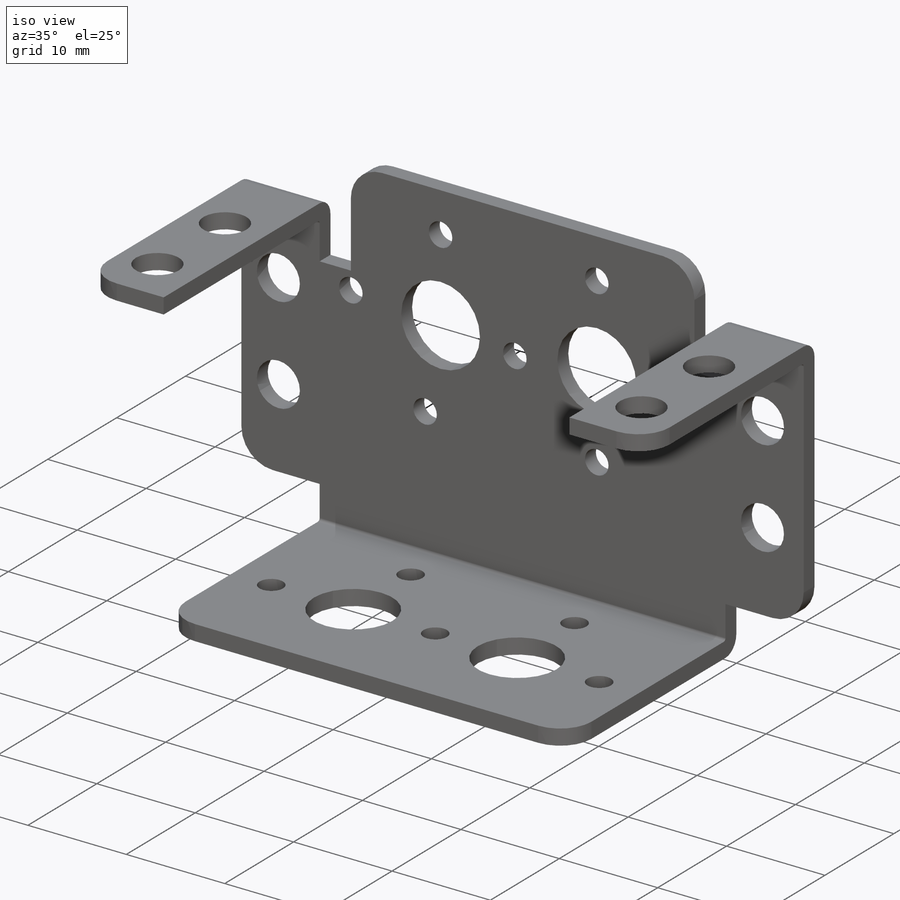
[diagram: iso view]
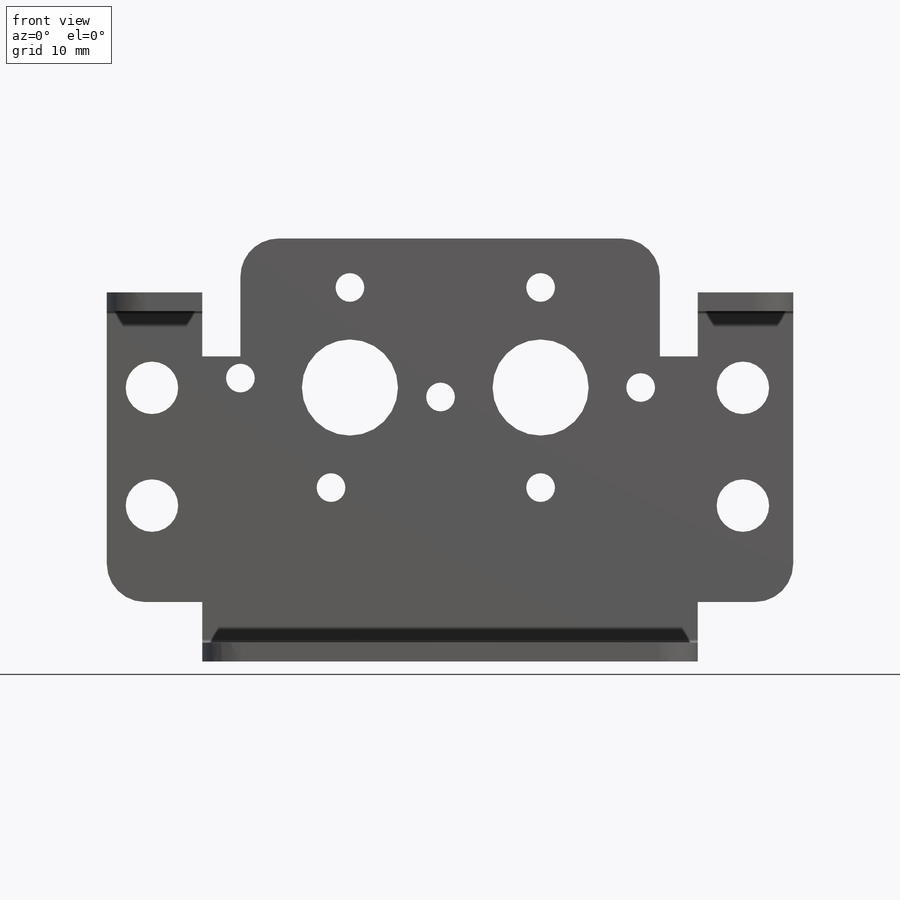
[diagram: front view]
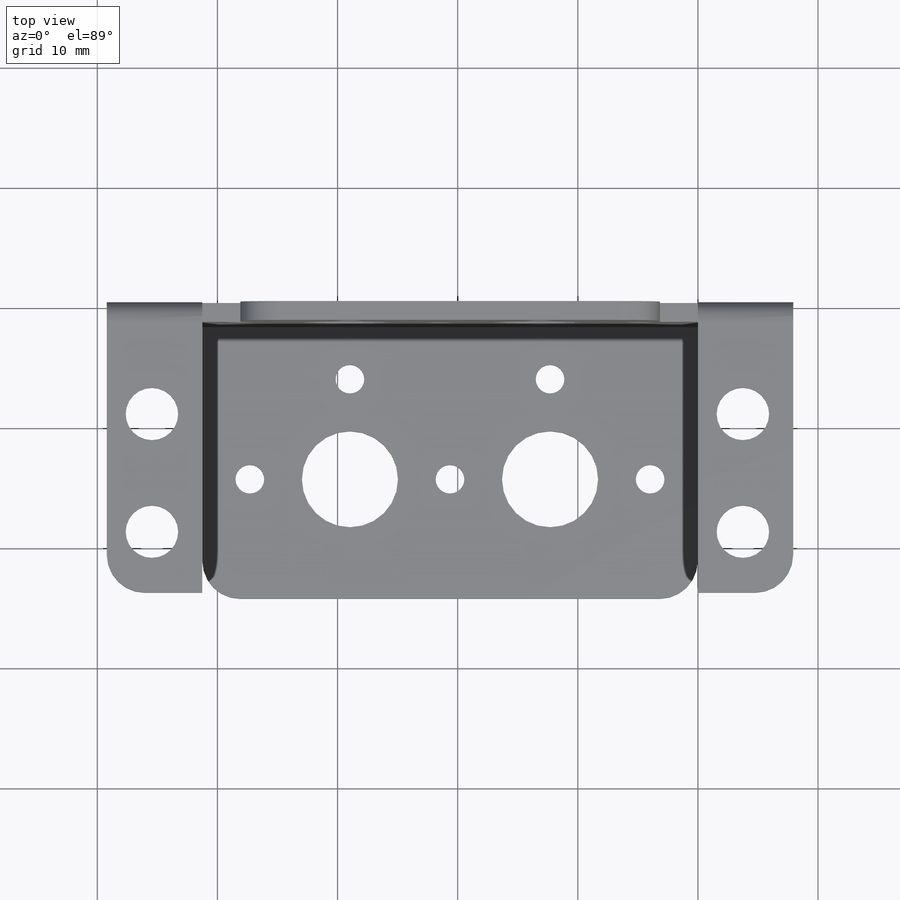
[diagram: top view]
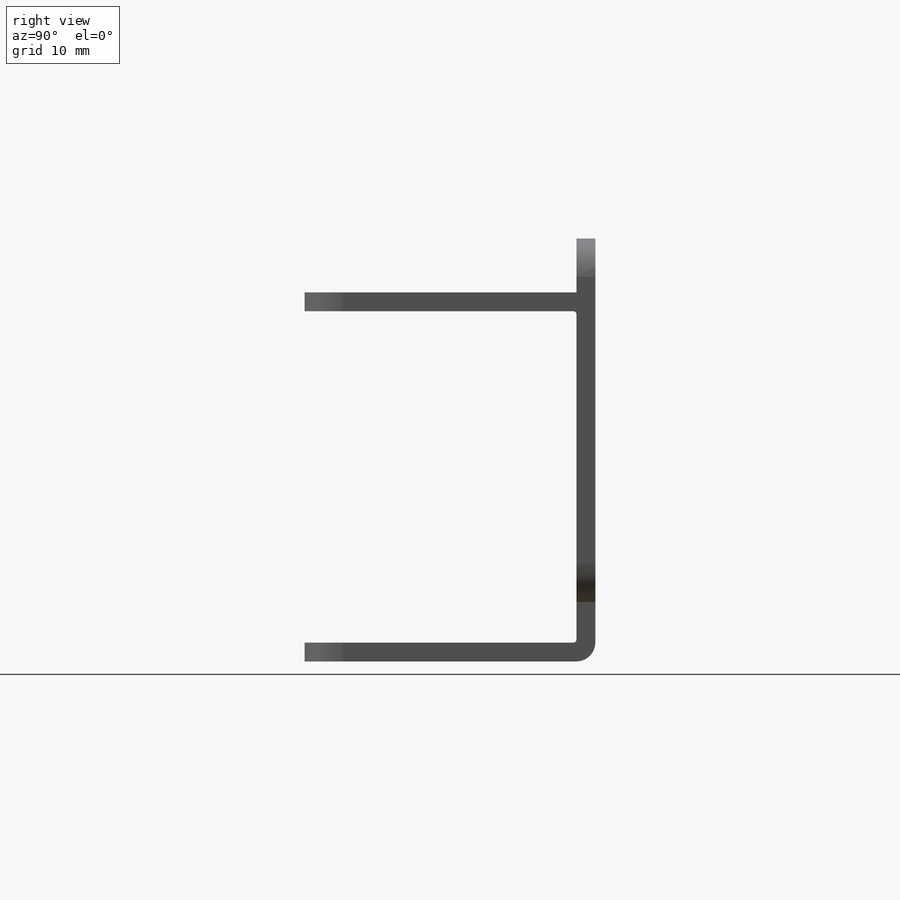
[diagram: right view]
SOLIDWORKS PART (.sldprt)
format: sldprt  version: not decoded by parser v0  size: 382,976 bytes
history: native  units: mm
features: sketch x4, fillet x3, extrude x2, cut_extrude x2, material x1 (+16 scaffold rows collapsed)
feature tree (28):
  scaffold x16  (default folders/planes/origin — collapsed)
  material  "Material <not specified>"
  sketch  "Sketch1"  dims[c1.D5=3.175mm c1.D1=3.175mm c1.D10=8.001mm c1.D11=16.6624mm c1.D12=2.3876mm c1.D15=4.3688mm c1.D16=4.3688mm c1.D18=4.3688mm c1.D20=4.3688mm c2.D1=30.734mm c2.D2=24.2062mm c3.D1=30.734mm c3.D2=57.15mm c3.D3=11.1252mm c3.D4=46.0502mm c3.D6=4.953mm c3.D7=4.953mm c3.D8=7.9502mm c3.D9=49.1998mm c4.D2=22.8092mm c4.D13=20.2438mm c4.D14=22.7838mm c4.D17=12.9794mm c4.D19=22.7838mm c4.D21=7.9502mm c4.D22=25.4mm c4.D23=25.4mm c4.D24=49.1998mm c4.D25=3.7592mm c4.D26=3.7592mm c4.D27=52.959mm c4.D28=12.9794mm c4.D29=52.959mm]
  extrude  "Extrude2"  Depth=1.5748mm
  sketch  "Sketch3"  dims[D1=1.5748mm D2=1.5748mm]
  extrude  "Extrude3"  Depth=22.6314mm
  fillet  "Fillet1"  Radius=3.175mm
  fillet  "Fillet2"  Radius=1.5748mm
  fillet  "Fillet3"  Radius=0.254mm
  sketch  "Sketch4"  dims[c1.D1=~3.359111mm c1.D2=8.001mm c1.D3=~1.352767mm c2.D1=14.2494mm c2.D3=20.2438mm]
  cut_extrude  "Extrude4"  [1 undecoded]
  sketch  "Sketch5"  dims[D1=4.3688mm D2=4.3688mm D3=3.7592mm D4=9.3218mm D5=19.1262mm]
  cut_extrude  "Extrude5"  [1 undecoded]
decode coverage: 9 of 11 modeling features carry decoded parameters
note: ~ marks probable driven/reference dimensions
note: 2 parameter values undecoded
note: suppression state not decoded; provenance and decode notes live in map.json
